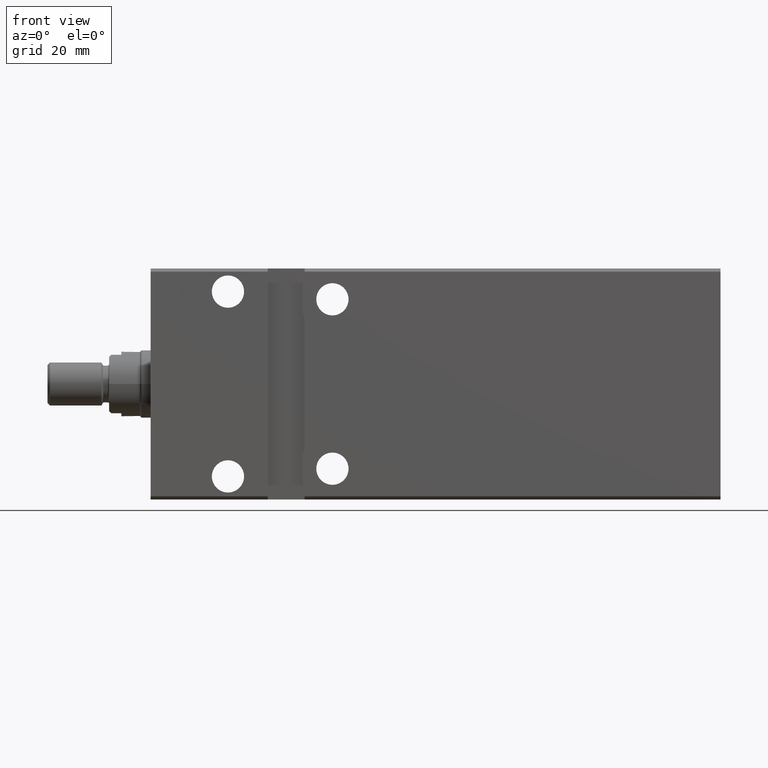
[diagram: clean part render]
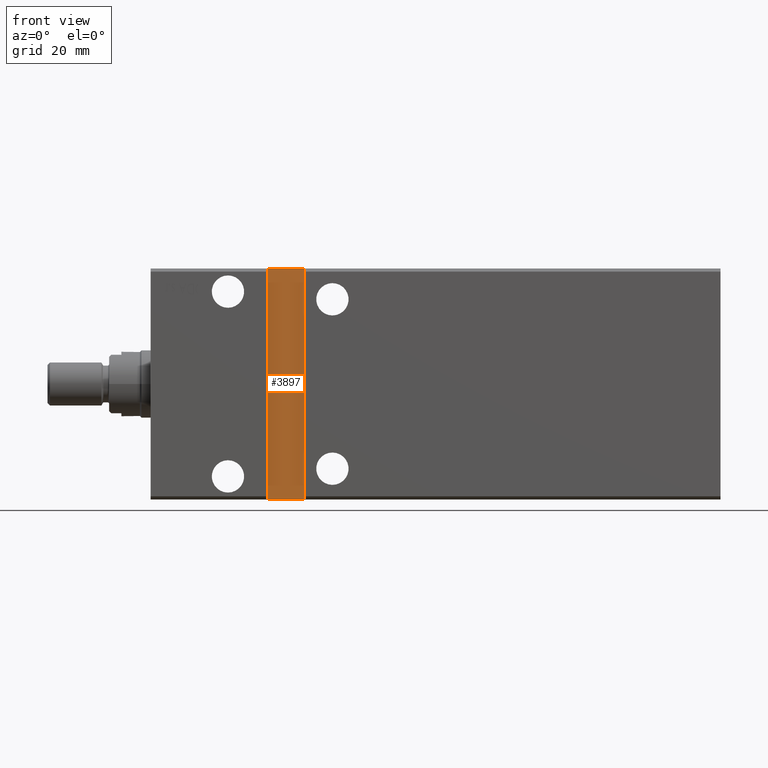
[diagram: same view with one face highlighted and labeled with its STEP entity id]
A machine part, front view. The second image highlights one B-rep face of the part: STEP entity #3897.
In plain terms, the highlighted planar face has unit normal (0, -1, -0).
Its self-contained STEP definition (entity closure, byte-faithful):
#2672 = AXIS2_PLACEMENT_3D ( 'NONE', #28123, #6686, #29990 ) ;
#3470 = EDGE_CURVE ( 'NONE', #11228, #7363, #31887, .T. ) ;
#3574 = DIRECTION ( 'NONE',  ( 9.251858538542971581E-17, 9.251858538542971581E-17, -1.000000000000000000 ) ) ;
#3897 = ADVANCED_FACE ( 'NONE', ( #6495 ), #33640, .T. ) ;
#4468 = CARTESIAN_POINT ( 'NONE',  ( 38.00000000000000000, -25.50000000000000711, 37.50000000000000711 ) ) ;
#5332 = DIRECTION ( 'NONE',  ( 1.000000000000000000, 0.000000000000000000, 0.000000000000000000 ) ) ;
#5676 = ORIENTED_EDGE ( 'NONE', *, *, #3470, .T. ) ;
#5810 = VERTEX_POINT ( 'NONE', #17082 ) ;
#6495 = FACE_OUTER_BOUND ( 'NONE', #21045, .T. ) ;
#6686 = DIRECTION ( 'NONE',  ( 0.000000000000000000, -1.000000000000000000, -9.251858538542971581E-17 ) ) ;
#7363 = VERTEX_POINT ( 'NONE', #12737 ) ;
#11228 = VERTEX_POINT ( 'NONE', #15015 ) ;
#12675 = LINE ( 'NONE', #25026, #33516 ) ;
#12737 = CARTESIAN_POINT ( 'NONE',  ( 49.99999999999999289, -25.50000000000000711, 37.50000000000000711 ) ) ;
#13293 = DIRECTION ( 'NONE',  ( -1.850371707708594316E-16, -9.251858538542971581E-17, 1.000000000000000000 ) ) ;
#15015 = CARTESIAN_POINT ( 'NONE',  ( 50.00000000000000711, -25.50000000000000355, -37.49999999999999289 ) ) ;
#16718 = ORIENTED_EDGE ( 'NONE', *, *, #32857, .T. ) ;
#17082 = CARTESIAN_POINT ( 'NONE',  ( 38.00000000000000711, -25.50000000000000355, -37.49999999999999289 ) ) ;
#17431 = LINE ( 'NONE', #39272, #19301 ) ;
#19301 = VECTOR ( 'NONE', #26735, 1000.000000000000000 ) ;
#20571 = VECTOR ( 'NONE', #5332, 1000.000000000000000 ) ;
#21045 = EDGE_LOOP ( 'NONE', ( #5676, #16718, #36808, #23378 ) ) ;
#23378 = ORIENTED_EDGE ( 'NONE', *, *, #26038, .T. ) ;
#25026 = CARTESIAN_POINT ( 'NONE',  ( 38.00000000000000000, -25.50000000000000711, 37.50000000000000711 ) ) ;
#26038 = EDGE_CURVE ( 'NONE', #5810, #11228, #30198, .T. ) ;
#26735 = DIRECTION ( 'NONE',  ( -1.000000000000000000, -0.000000000000000000, -0.000000000000000000 ) ) ;
#27261 = EDGE_CURVE ( 'NONE', #34617, #5810, #12675, .T. ) ;
#28123 = CARTESIAN_POINT ( 'NONE',  ( 0.000000000000000000, -25.50000000000000355, -2.434119925021425278E-15 ) ) ;
#28861 = CARTESIAN_POINT ( 'NONE',  ( 49.99999999999999289, -25.50000000000000711, 37.50000000000000711 ) ) ;
#29990 = DIRECTION ( 'NONE',  ( 0.000000000000000000, 9.251858538542971581E-17, -1.000000000000000000 ) ) ;
#30198 = LINE ( 'NONE', #30598, #20571 ) ;
#30598 = CARTESIAN_POINT ( 'NONE',  ( 38.00000000000000711, -25.50000000000000355, -37.49999999999999289 ) ) ;
#31887 = LINE ( 'NONE', #28861, #33671 ) ;
#32857 = EDGE_CURVE ( 'NONE', #7363, #34617, #17431, .T. ) ;
#33516 = VECTOR ( 'NONE', #3574, 1000.000000000000000 ) ;
#33640 = PLANE ( 'NONE',  #2672 ) ;
#33671 = VECTOR ( 'NONE', #13293, 1000.000000000000000 ) ;
#34617 = VERTEX_POINT ( 'NONE', #4468 ) ;
#36808 = ORIENTED_EDGE ( 'NONE', *, *, #27261, .T. ) ;
#39272 = CARTESIAN_POINT ( 'NONE',  ( 38.00000000000000000, -25.50000000000000711, 37.50000000000000711 ) ) ;